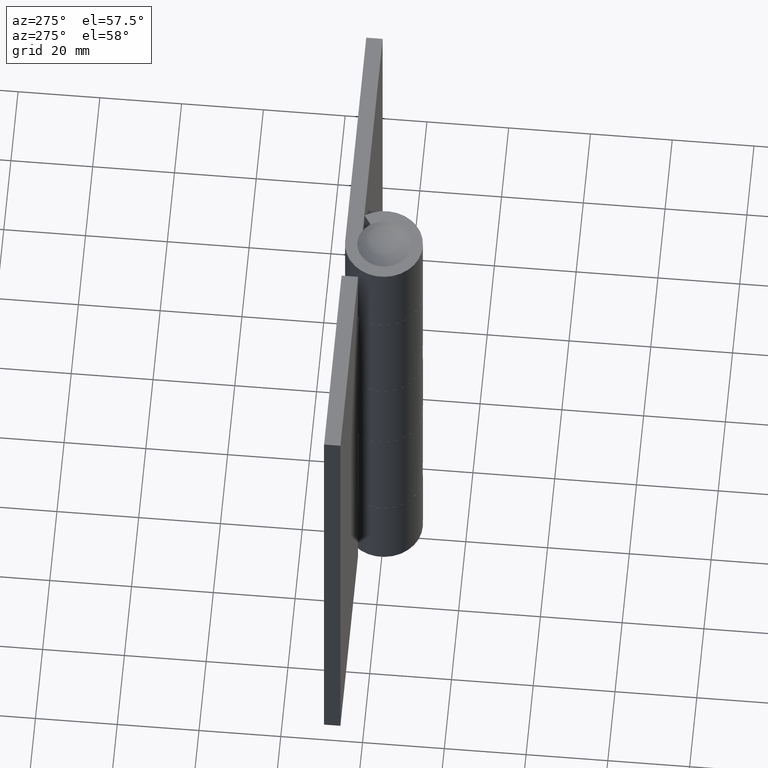
[diagram: clean part render]
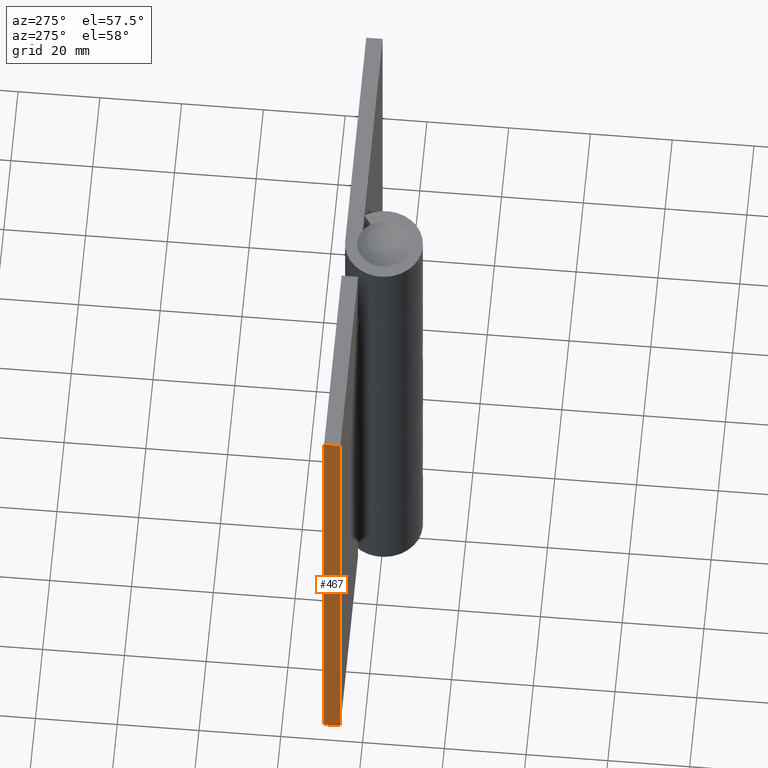
[diagram: same view with one face highlighted and labeled with its STEP entity id]
A machine part, auxiliary view. The second image highlights one B-rep face of the part: STEP entity #467.
In plain terms, the highlighted face is a freeform B-spline surface patch.
Its self-contained STEP definition (entity closure, byte-faithful):
#432=CARTESIAN_POINT('',(-59.0,5.300200007752776,133.343649753849410));
#433=CARTESIAN_POINT('',(-59.0,5.300200007752776,-6.343653160254808));
#434=CARTESIAN_POINT('',(-59.0,9.699800099535585,133.343649753849410));
#435=CARTESIAN_POINT('',(-59.0,9.699800099535585,-6.343653160254808));
#436=B_SPLINE_SURFACE_WITH_KNOTS('',1,1,((#432,#434),(#433,#435)),.UNSPECIFIED.,.F.,.F.,.U.,(2,2),(2,2),(0.0,139.687302914104210),(0.0,4.399600091782809),.UNSPECIFIED.);
#437=CARTESIAN_POINT('',(-59.0,9.500000000000000,0.0));
#438=VERTEX_POINT('',#437);
#439=CARTESIAN_POINT('',(-59.0,5.500000000000000,0.0));
#440=VERTEX_POINT('',#439);
#441=CARTESIAN_POINT('',(-59.0,9.500000000000000,0.0));
#442=CARTESIAN_POINT('',(-59.0,5.500000000000000,0.0));
#443=QUASI_UNIFORM_CURVE('',1,(#441,#442),.UNSPECIFIED.,.F.,.U.);
#444=EDGE_CURVE('',#438,#440,#443,.T.);
#445=ORIENTED_EDGE('',*,*,#444,.T.);
#446=CARTESIAN_POINT('',(-59.0,5.500000000000000,127.0));
#447=VERTEX_POINT('',#446);
#448=CARTESIAN_POINT('',(-59.0,5.500000000000000,127.0));
#449=CARTESIAN_POINT('',(-59.0,5.500000000000000,0.0));
#450=QUASI_UNIFORM_CURVE('',1,(#448,#449),.UNSPECIFIED.,.F.,.U.);
#451=EDGE_CURVE('',#447,#440,#450,.T.);
#452=ORIENTED_EDGE('',*,*,#451,.F.);
#453=CARTESIAN_POINT('',(-59.0,9.500000000000000,127.0));
#454=VERTEX_POINT('',#453);
#455=CARTESIAN_POINT('',(-59.0,9.500000000000000,127.0));
#456=CARTESIAN_POINT('',(-59.0,5.500000000000000,127.0));
#457=QUASI_UNIFORM_CURVE('',1,(#455,#456),.UNSPECIFIED.,.F.,.U.);
#458=EDGE_CURVE('',#454,#447,#457,.T.);
#459=ORIENTED_EDGE('',*,*,#458,.F.);
#460=CARTESIAN_POINT('',(-59.0,9.500000000000000,127.0));
#461=CARTESIAN_POINT('',(-59.0,9.500000000000000,0.0));
#462=QUASI_UNIFORM_CURVE('',1,(#460,#461),.UNSPECIFIED.,.F.,.U.);
#463=EDGE_CURVE('',#454,#438,#462,.T.);
#464=ORIENTED_EDGE('',*,*,#463,.T.);
#465=EDGE_LOOP('',(#445,#452,#459,#464));
#466=FACE_OUTER_BOUND('',#465,.T.);
#467=ADVANCED_FACE('',(#466),#436,.F.);